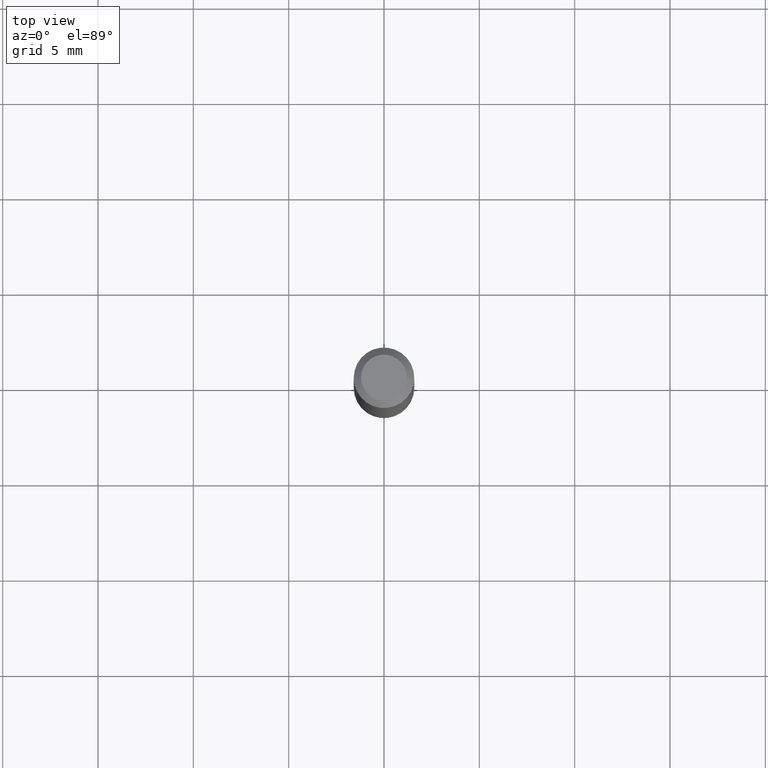
[diagram: clean part render]
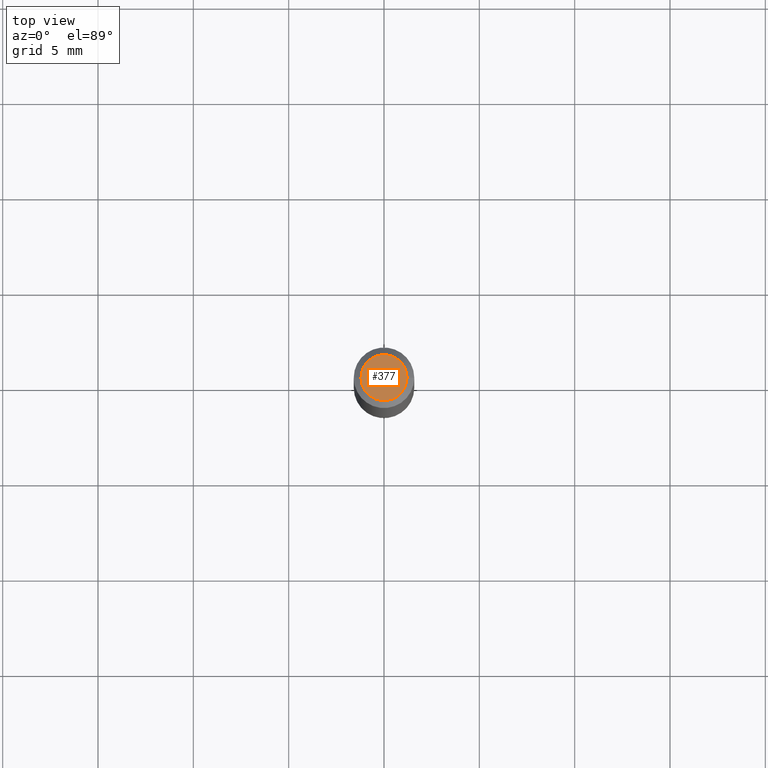
[diagram: same view with one face highlighted and labeled with its STEP entity id]
A machine part, top view. The second image highlights one B-rep face of the part: STEP entity #377.
In plain terms, the highlighted planar face has unit normal (0, -0, -1).
Its self-contained STEP definition (entity closure, byte-faithful):
#12 = AXIS2_PLACEMENT_3D ( 'NONE', #416, #294, #184 ) ;
#15 = DIRECTION ( 'NONE',  ( 1.000000000000000000, -6.982962677686267499E-15, 4.884662768193073002E-29 ) ) ;
#21 = EDGE_CURVE ( 'NONE', #253, #149, #65, .T. ) ;
#65 = CIRCLE ( 'NONE', #150, 0.04749999999999999362 ) ;
#98 = EDGE_LOOP ( 'NONE', ( #421, #354 ) ) ;
#149 = VERTEX_POINT ( 'NONE', #258 ) ;
#150 = AXIS2_PLACEMENT_3D ( 'NONE', #281, #216, #425 ) ;
#153 = EDGE_CURVE ( 'NONE', #149, #253, #358, .T. ) ;
#154 = CARTESIAN_POINT ( 'NONE',  ( -3.223020679335594837E-45, 4.601619341103081537E-31, 1.317956160873471783E-16 ) ) ;
#160 = PLANE ( 'NONE',  #12 ) ;
#167 = CARTESIAN_POINT ( 'NONE',  ( 0.04749999999999999362, -4.035134999187576158E-16, 1.317956160873497667E-16 ) ) ;
#184 = DIRECTION ( 'NONE',  ( -1.000000000000000000, 6.982962677686265922E-15, -4.876176775795935793E-29 ) ) ;
#216 = DIRECTION ( 'NONE',  ( -2.445468806185136597E-29, 3.491481338843145583E-15, 1.000000000000000000 ) ) ;
#236 = FACE_OUTER_BOUND ( 'NONE', #98, .T. ) ;
#253 = VERTEX_POINT ( 'NONE', #167 ) ;
#258 = CARTESIAN_POINT ( 'NONE',  ( -0.04749999999999999362, 3.578768372314212971E-16, 1.317956160873447624E-16 ) ) ;
#281 = CARTESIAN_POINT ( 'NONE',  ( -3.223020679335594837E-45, 4.601619341103081537E-31, 1.317956160873471783E-16 ) ) ;
#290 = AXIS2_PLACEMENT_3D ( 'NONE', #154, #406, #15 ) ;
#294 = DIRECTION ( 'NONE',  ( 2.438088387897960049E-29, -3.491481338843145188E-15, -1.000000000000000000 ) ) ;
#354 = ORIENTED_EDGE ( 'NONE', *, *, #21, .T. ) ;
#358 = CIRCLE ( 'NONE', #290, 0.04749999999999999362 ) ;
#377 = ADVANCED_FACE ( 'NONE', ( #236 ), #160, .F. ) ;
#406 = DIRECTION ( 'NONE',  ( -2.445468806185136597E-29, 3.491481338843145583E-15, 1.000000000000000000 ) ) ;
#416 = CARTESIAN_POINT ( 'NONE',  ( 3.316907271900976096E-16, 0.04749999999999999362, -9.994755555137580731E-17 ) ) ;
#421 = ORIENTED_EDGE ( 'NONE', *, *, #153, .T. ) ;
#425 = DIRECTION ( 'NONE',  ( 1.000000000000000000, -6.982962677686267499E-15, 4.884662768193073002E-29 ) ) ;